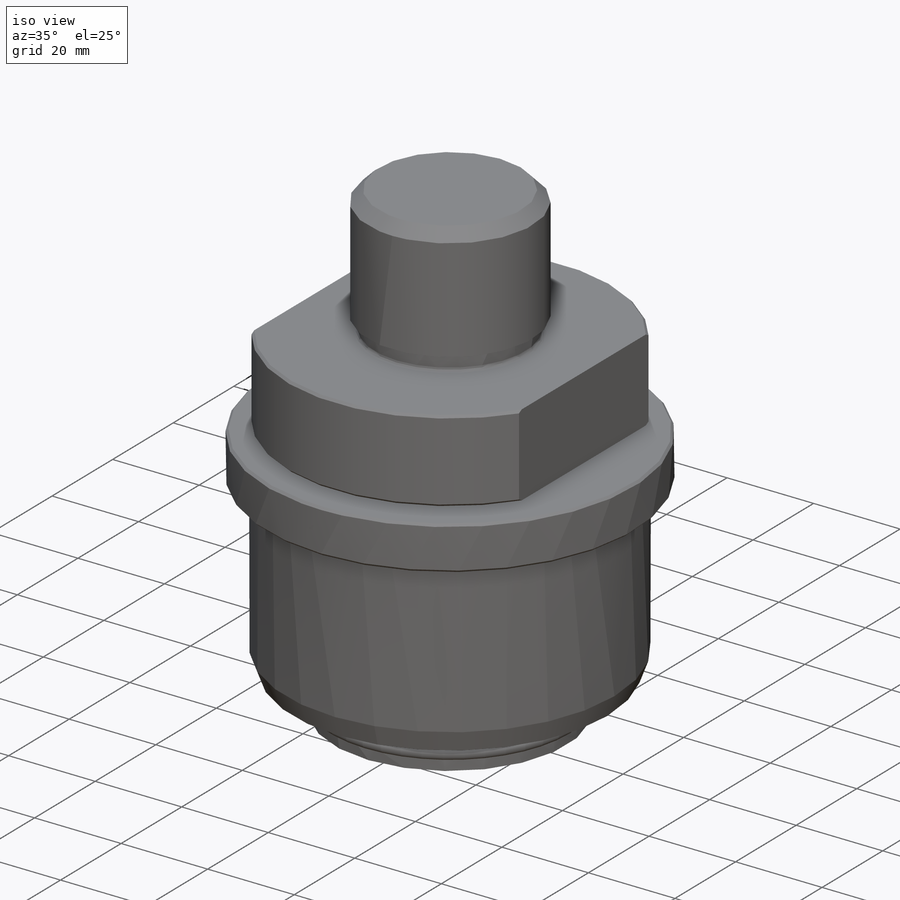
[diagram: iso view]
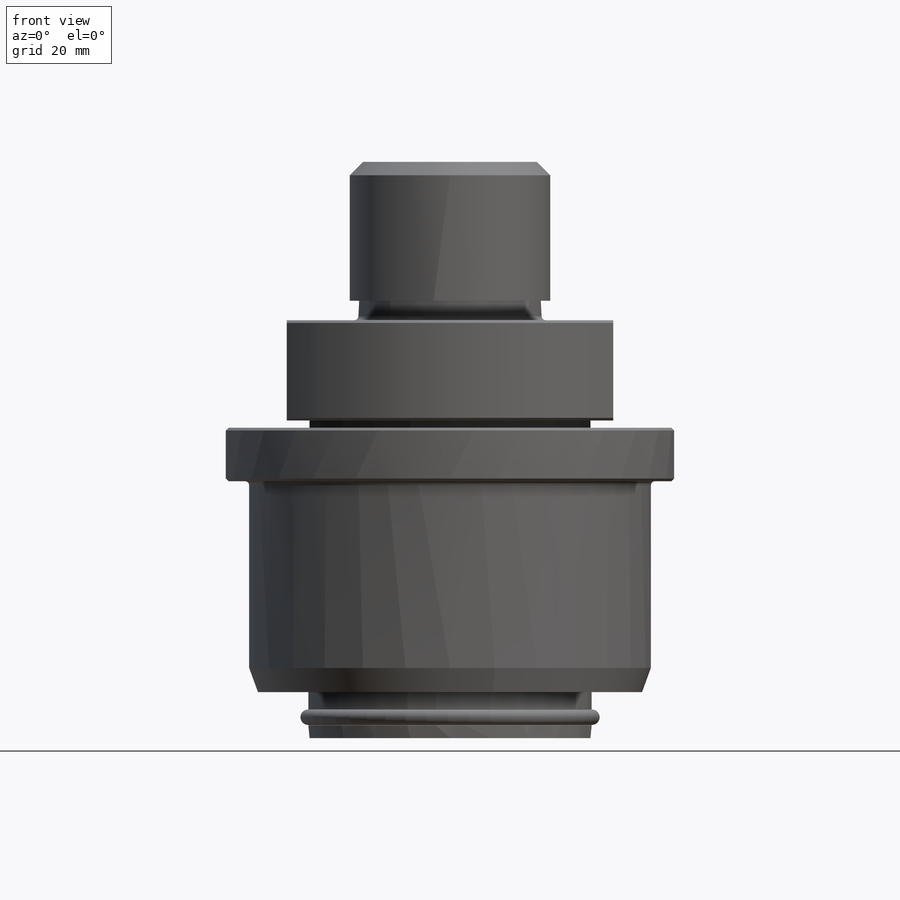
[diagram: front view]
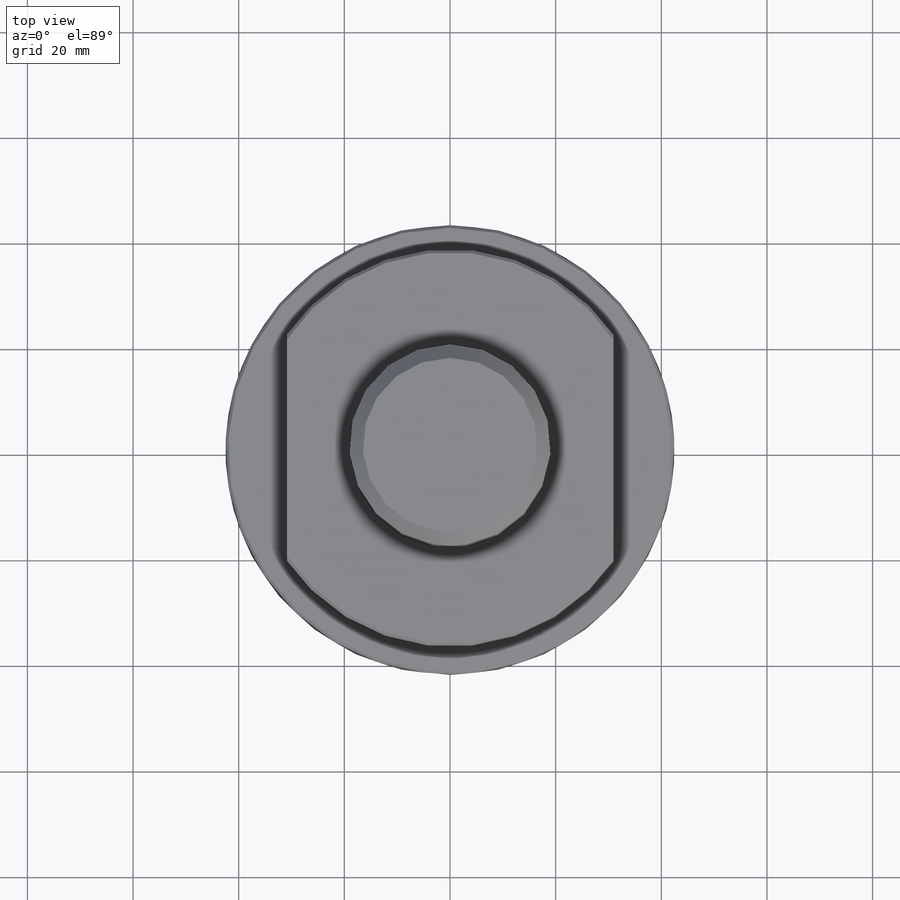
[diagram: top view]
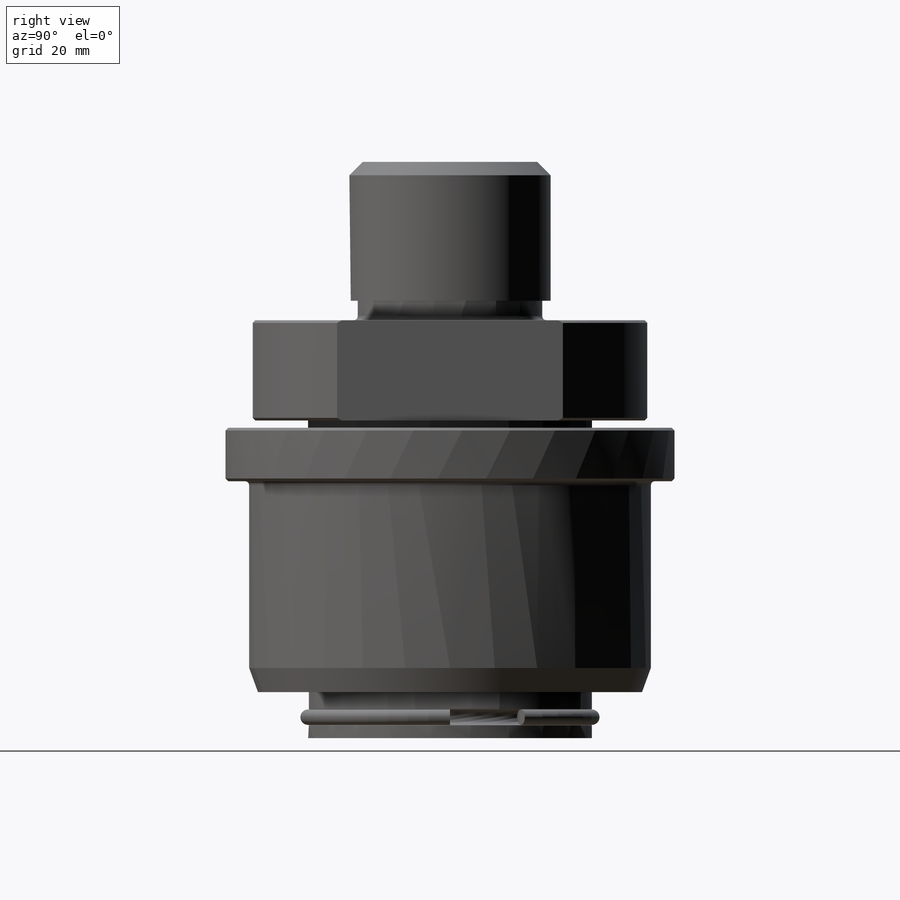
[diagram: right view]
SOLIDWORKS PART (.sldprt)
format: sldprt  version: not decoded by parser v0  size: 251,392 bytes
history: native  units: mm
features: sketch x4, revolve x3, chamfer x3, material x1, cut_extrude x1 (+13 scaffold rows collapsed)
feature tree (25):
  scaffold x13  (default folders/planes/origin — collapsed)
  material  "Material <not specified>"
  sketch  "Sketch1"  dims[c1.D14=1.524mm c1.D15=1.524mm c1.D16=0.762mm c1.D1=38.1mm c1.D2=29.972mm c1.D3=18.9992mm c1.D4=79.121mm c1.D5=53.721mm c1.D6=32.004mm c1.D7=3.683mm c1.D8=34.925mm c1.D9=40.0812mm c1.D10=7.874mm c1.D11=~0.856569mm c2.D11=45.0deg c2.D12=17.272mm c2.D13=7.493mm c2.D10=18.542mm c3.D13=2.4384mm c3.D6=75.1586mm]
  revolve  "Revolve1"  Angle=360deg
  chamfer  "Chamfer1"  Distance=0.508mm Angle=45deg
  chamfer  "Chamfer2"  Distance=2.54mm Angle=45deg
  sketch  "Sketch4"  dims[D1=30.9118mm D2=30.9118mm]
  cut_extrude  "Cut-Extrude1"  [1 undecoded]
  sketch  "Sketch2"  dims[c1.D13=1.016mm c1.D14=0.762mm c1.D1=50.038mm c1.D2=10.1092mm c1.D3=76.0476mm c1.D4=85.0138mm c1.D5=4.572mm c1.D6=~6.064089mm c2.D6=20.0deg c2.D7=~72.719456mm c2.D8=30.48mm c2.D9=0.0508mm c2.D10=9.271mm c2.D11=8.7122mm c2.D12=64.2112mm]
  revolve  "Revolve2"  Angle=360deg
  chamfer  "Chamfer3"  Distance=0.508mm Angle=45deg
  sketch  "Sketch3"  dims[D1=0.0508mm]
  revolve  "Revolve3"  Angle=330deg
decode coverage: 10 of 11 modeling features carry decoded parameters
note: ~ marks probable driven/reference dimensions
note: 1 parameter value undecoded
note: suppression state not decoded; provenance and decode notes live in map.json
